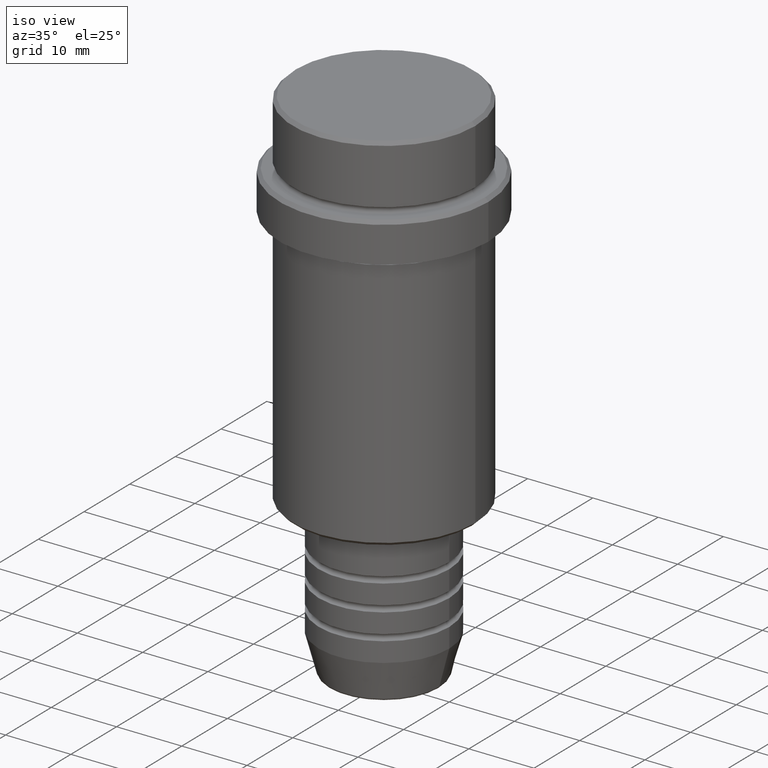
[diagram: clean part render]
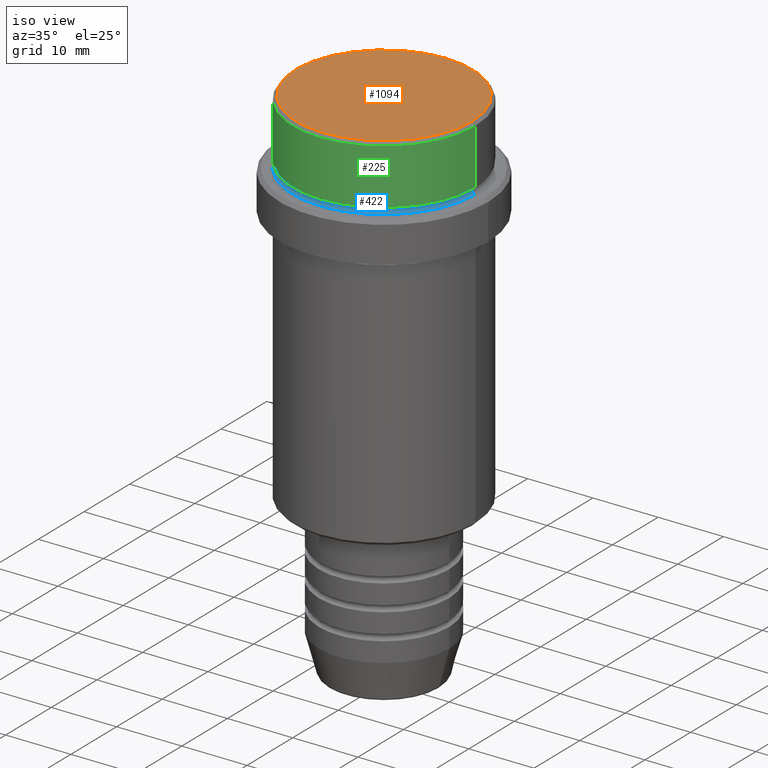
[diagram: same view with three faces highlighted in distinct colors, each labeled with its STEP entity id]
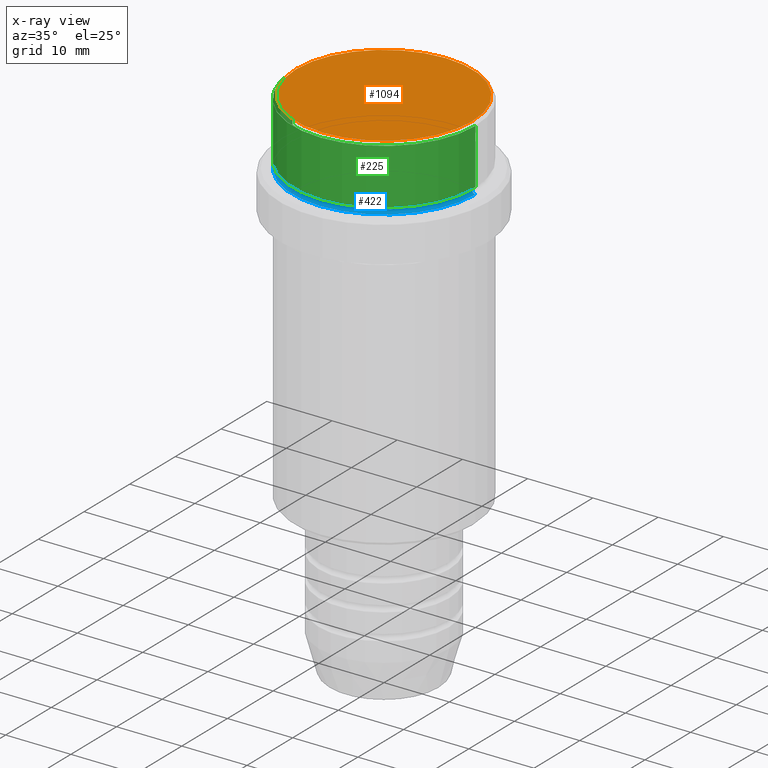
[diagram: x-ray of the same camera — body ghosted, the three highlighted faces saturated]
A machine part, iso view with three faces highlighted in distinct colors.
The next image is the same camera in x-ray (body ghosted, the three faces saturated) — at least one of them is partly hidden behind the body in this view.
Their STEP definitions:

[orange] entity #1094 — the highlighted planar face has unit normal (0, -0, 1).
#99 = CARTESIAN_POINT ( 'NONE',  ( 0.000000000000000000, 0.000000000000000000, 0.000000000000000000 ) ) ;
#151 = DIRECTION ( 'NONE',  ( 0.000000000000000000, -0.000000000000000000, 1.000000000000000000 ) ) ;
#160 = CIRCLE ( 'NONE', #506, 13.49999999999999822 ) ;
#311 = CARTESIAN_POINT ( 'NONE',  ( 13.49999999999999822, 1.683889348827610456E-15, 0.000000000000000000 ) ) ;
#461 = DIRECTION ( 'NONE',  ( -0.000000000000000000, -0.000000000000000000, 1.000000000000000000 ) ) ;
#473 = ORIENTED_EDGE ( 'NONE', *, *, #710, .T. ) ;
#506 = AXIS2_PLACEMENT_3D ( 'NONE', #565, #461, #792 ) ;
#565 = CARTESIAN_POINT ( 'NONE',  ( 0.000000000000000000, 0.000000000000000000, 0.000000000000000000 ) ) ;
#589 = DIRECTION ( 'NONE',  ( 1.000000000000000000, 0.000000000000000000, 0.000000000000000000 ) ) ;
#684 = VERTEX_POINT ( 'NONE', #1068 ) ;
#692 = VERTEX_POINT ( 'NONE', #311 ) ;
#710 = EDGE_CURVE ( 'NONE', #692, #684, #1404, .T. ) ;
#792 = DIRECTION ( 'NONE',  ( 1.000000000000000000, 0.000000000000000000, 0.000000000000000000 ) ) ;
#800 = AXIS2_PLACEMENT_3D ( 'NONE', #99, #1183, #1033 ) ;
#814 = CARTESIAN_POINT ( 'NONE',  ( 0.000000000000000000, 0.000000000000000000, 0.000000000000000000 ) ) ;
#985 = EDGE_CURVE ( 'NONE', #684, #692, #160, .T. ) ;
#1033 = DIRECTION ( 'NONE',  ( 1.000000000000000000, 0.000000000000000000, 0.000000000000000000 ) ) ;
#1068 = CARTESIAN_POINT ( 'NONE',  ( -13.49999999999999822, 0.000000000000000000, 0.000000000000000000 ) ) ;
#1094 = ADVANCED_FACE ( 'NONE', ( #1140 ), #1347, .T. ) ;
#1140 = FACE_OUTER_BOUND ( 'NONE', #1327, .T. ) ;
#1183 = DIRECTION ( 'NONE',  ( -0.000000000000000000, -0.000000000000000000, 1.000000000000000000 ) ) ;
#1327 = EDGE_LOOP ( 'NONE', ( #1363, #473 ) ) ;
#1347 = PLANE ( 'NONE',  #1382 ) ;
#1363 = ORIENTED_EDGE ( 'NONE', *, *, #985, .T. ) ;
#1382 = AXIS2_PLACEMENT_3D ( 'NONE', #814, #151, #589 ) ;
#1404 = CIRCLE ( 'NONE', #800, 13.49999999999999822 ) ;

[blue] entity #422 — the highlighted toroidal blend (fillet) surface has major radius 14 mm and minor (blend) radius 0.5 mm.
#66 = DIRECTION ( 'NONE',  ( 0.000000000000000000, 0.000000000000000000, -1.000000000000000000 ) ) ;
#163 = FACE_OUTER_BOUND ( 'NONE', #968, .T. ) ;
#275 = CIRCLE ( 'NONE', #389, 13.49999999999999112 ) ;
#316 = ORIENTED_EDGE ( 'NONE', *, *, #586, .F. ) ;
#320 = AXIS2_PLACEMENT_3D ( 'NONE', #491, #1237, #572 ) ;
#334 = EDGE_CURVE ( 'NONE', #1238, #1240, #1197, .T. ) ;
#389 = AXIS2_PLACEMENT_3D ( 'NONE', #1368, #1387, #628 ) ;
#401 = ORIENTED_EDGE ( 'NONE', *, *, #492, .F. ) ;
#422 = ADVANCED_FACE ( 'NONE', ( #163 ), #798, .F. ) ;
#424 = DIRECTION ( 'NONE',  ( 1.000000000000000000, 0.000000000000000000, 0.000000000000000000 ) ) ;
#490 = AXIS2_PLACEMENT_3D ( 'NONE', #838, #958, #1390 ) ;
#491 = CARTESIAN_POINT ( 'NONE',  ( 0.000000000000000000, 0.000000000000000000, -9.500000000000001776 ) ) ;
#492 = EDGE_CURVE ( 'NONE', #782, #1240, #1402, .T. ) ;
#521 = CARTESIAN_POINT ( 'NONE',  ( 13.49999999999999112, 0.000000000000000000, -9.500000000000001776 ) ) ;
#572 = DIRECTION ( 'NONE',  ( 1.000000000000000000, 0.000000000000000000, 0.000000000000000000 ) ) ;
#586 = EDGE_CURVE ( 'NONE', #1319, #782, #926, .T. ) ;
#628 = DIRECTION ( 'NONE',  ( 1.000000000000000000, 0.000000000000000000, 0.000000000000000000 ) ) ;
#654 = DIRECTION ( 'NONE',  ( -1.000000000000000000, 1.224646799147349509E-16, 0.000000000000000000 ) ) ;
#656 = AXIS2_PLACEMENT_3D ( 'NONE', #1098, #1287, #654 ) ;
#678 = CARTESIAN_POINT ( 'NONE',  ( 13.99999999999999112, 0.000000000000000000, -10.00000000000000178 ) ) ;
#782 = VERTEX_POINT ( 'NONE', #678 ) ;
#798 = TOROIDAL_SURFACE ( 'NONE', #320, 13.99999999999999112, 0.5000000000000000000 ) ;
#838 = CARTESIAN_POINT ( 'NONE',  ( 13.99999999999999112, 0.000000000000000000, -9.500000000000001776 ) ) ;
#895 = ORIENTED_EDGE ( 'NONE', *, *, #1273, .F. ) ;
#926 = CIRCLE ( 'NONE', #490, 0.5000000000000004441 ) ;
#935 = CARTESIAN_POINT ( 'NONE',  ( 0.000000000000000000, 0.000000000000000000, -10.00000000000000178 ) ) ;
#958 = DIRECTION ( 'NONE',  ( 0.000000000000000000, -1.000000000000000000, 0.000000000000000000 ) ) ;
#968 = EDGE_LOOP ( 'NONE', ( #895, #1022, #401, #316 ) ) ;
#1022 = ORIENTED_EDGE ( 'NONE', *, *, #334, .T. ) ;
#1098 = CARTESIAN_POINT ( 'NONE',  ( -13.99999999999999112, 1.714505518806293455E-15, -9.500000000000001776 ) ) ;
#1112 = CARTESIAN_POINT ( 'NONE',  ( -13.49999999999999112, 1.683889348827609668E-15, -9.500000000000001776 ) ) ;
#1197 = CIRCLE ( 'NONE', #656, 0.5000000000000004441 ) ;
#1237 = DIRECTION ( 'NONE',  ( -0.000000000000000000, -0.000000000000000000, 1.000000000000000000 ) ) ;
#1238 = VERTEX_POINT ( 'NONE', #1112 ) ;
#1240 = VERTEX_POINT ( 'NONE', #1305 ) ;
#1270 = AXIS2_PLACEMENT_3D ( 'NONE', #935, #66, #424 ) ;
#1273 = EDGE_CURVE ( 'NONE', #1238, #1319, #275, .T. ) ;
#1287 = DIRECTION ( 'NONE',  ( 1.224646799147353207E-16, 1.000000000000000000, 0.000000000000000000 ) ) ;
#1305 = CARTESIAN_POINT ( 'NONE',  ( -13.99999999999999112, 1.714505518806293455E-15, -10.00000000000000178 ) ) ;
#1319 = VERTEX_POINT ( 'NONE', #521 ) ;
#1368 = CARTESIAN_POINT ( 'NONE',  ( 0.000000000000000000, 0.000000000000000000, -9.500000000000001776 ) ) ;
#1387 = DIRECTION ( 'NONE',  ( -0.000000000000000000, -0.000000000000000000, 1.000000000000000000 ) ) ;
#1390 = DIRECTION ( 'NONE',  ( 0.000000000000000000, 0.000000000000000000, -1.000000000000000000 ) ) ;
#1402 = CIRCLE ( 'NONE', #1270, 13.99999999999999112 ) ;

[green] entity #225 — the highlighted cylindrical surface (partial cylindrical patch) has radius 14 mm, axis along (-0, -0, 1).
#12 = VECTOR ( 'NONE', #1349, 1000.000000000000000 ) ;
#44 = LINE ( 'NONE', #1020, #12 ) ;
#46 = CARTESIAN_POINT ( 'NONE',  ( 0.000000000000000000, 0.000000000000000000, -8.999999999999998224 ) ) ;
#96 = CARTESIAN_POINT ( 'NONE',  ( -13.99999999999999822, 1.714505518806294441E-15, -0.4999999999999935052 ) ) ;
#111 = VERTEX_POINT ( 'NONE', #96 ) ;
#170 = DIRECTION ( 'NONE',  ( 1.000000000000000000, 0.000000000000000000, 0.000000000000000000 ) ) ;
#225 = ADVANCED_FACE ( 'NONE', ( #285 ), #942, .T. ) ;
#285 = FACE_OUTER_BOUND ( 'NONE', #479, .T. ) ;
#307 = DIRECTION ( 'NONE',  ( -0.000000000000000000, -0.000000000000000000, 1.000000000000000000 ) ) ;
#363 = EDGE_CURVE ( 'NONE', #428, #111, #1330, .T. ) ;
#398 = CARTESIAN_POINT ( 'NONE',  ( 13.99999999999999467, 0.000000000000000000, -8.999999999999998224 ) ) ;
#428 = VERTEX_POINT ( 'NONE', #1010 ) ;
#435 = AXIS2_PLACEMENT_3D ( 'NONE', #755, #1191, #1083 ) ;
#440 = AXIS2_PLACEMENT_3D ( 'NONE', #46, #1245, #170 ) ;
#449 = EDGE_CURVE ( 'NONE', #910, #111, #44, .T. ) ;
#479 = EDGE_LOOP ( 'NONE', ( #1345, #907, #823, #1310 ) ) ;
#542 = VERTEX_POINT ( 'NONE', #398 ) ;
#606 = DIRECTION ( 'NONE',  ( -0.000000000000000000, -0.000000000000000000, 1.000000000000000000 ) ) ;
#663 = VECTOR ( 'NONE', #307, 1000.000000000000000 ) ;
#755 = CARTESIAN_POINT ( 'NONE',  ( 0.000000000000000000, 0.000000000000000000, -0.4999999999999935052 ) ) ;
#823 = ORIENTED_EDGE ( 'NONE', *, *, #1314, .T. ) ;
#835 = LINE ( 'NONE', #851, #663 ) ;
#851 = CARTESIAN_POINT ( 'NONE',  ( 13.99999999999999822, 0.000000000000000000, 0.000000000000000000 ) ) ;
#869 = AXIS2_PLACEMENT_3D ( 'NONE', #949, #606, #1150 ) ;
#890 = CIRCLE ( 'NONE', #440, 13.99999999999999467 ) ;
#907 = ORIENTED_EDGE ( 'NONE', *, *, #1100, .T. ) ;
#910 = VERTEX_POINT ( 'NONE', #1401 ) ;
#942 = CYLINDRICAL_SURFACE ( 'NONE', #869, 13.99999999999999822 ) ;
#949 = CARTESIAN_POINT ( 'NONE',  ( 0.000000000000000000, 0.000000000000000000, 0.000000000000000000 ) ) ;
#1010 = CARTESIAN_POINT ( 'NONE',  ( 13.99999999999999822, 0.000000000000000000, -0.4999999999999935052 ) ) ;
#1020 = CARTESIAN_POINT ( 'NONE',  ( -13.99999999999999822, 1.714505518806294441E-15, 0.000000000000000000 ) ) ;
#1083 = DIRECTION ( 'NONE',  ( 1.000000000000000000, 0.000000000000000000, 0.000000000000000000 ) ) ;
#1100 = EDGE_CURVE ( 'NONE', #910, #542, #890, .T. ) ;
#1150 = DIRECTION ( 'NONE',  ( 1.000000000000000000, 0.000000000000000000, 0.000000000000000000 ) ) ;
#1191 = DIRECTION ( 'NONE',  ( 0.000000000000000000, 0.000000000000000000, -1.000000000000000000 ) ) ;
#1245 = DIRECTION ( 'NONE',  ( -0.000000000000000000, -0.000000000000000000, 1.000000000000000000 ) ) ;
#1310 = ORIENTED_EDGE ( 'NONE', *, *, #363, .T. ) ;
#1314 = EDGE_CURVE ( 'NONE', #542, #428, #835, .T. ) ;
#1330 = CIRCLE ( 'NONE', #435, 13.99999999999999822 ) ;
#1345 = ORIENTED_EDGE ( 'NONE', *, *, #449, .F. ) ;
#1349 = DIRECTION ( 'NONE',  ( -0.000000000000000000, -0.000000000000000000, 1.000000000000000000 ) ) ;
#1401 = CARTESIAN_POINT ( 'NONE',  ( -13.99999999999999467, 1.714505518806294244E-15, -8.999999999999998224 ) ) ;